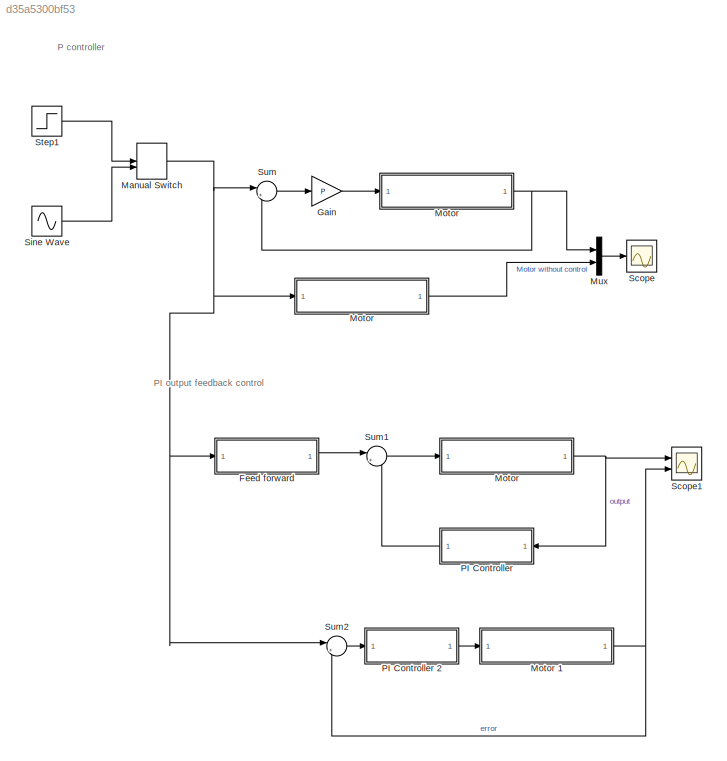
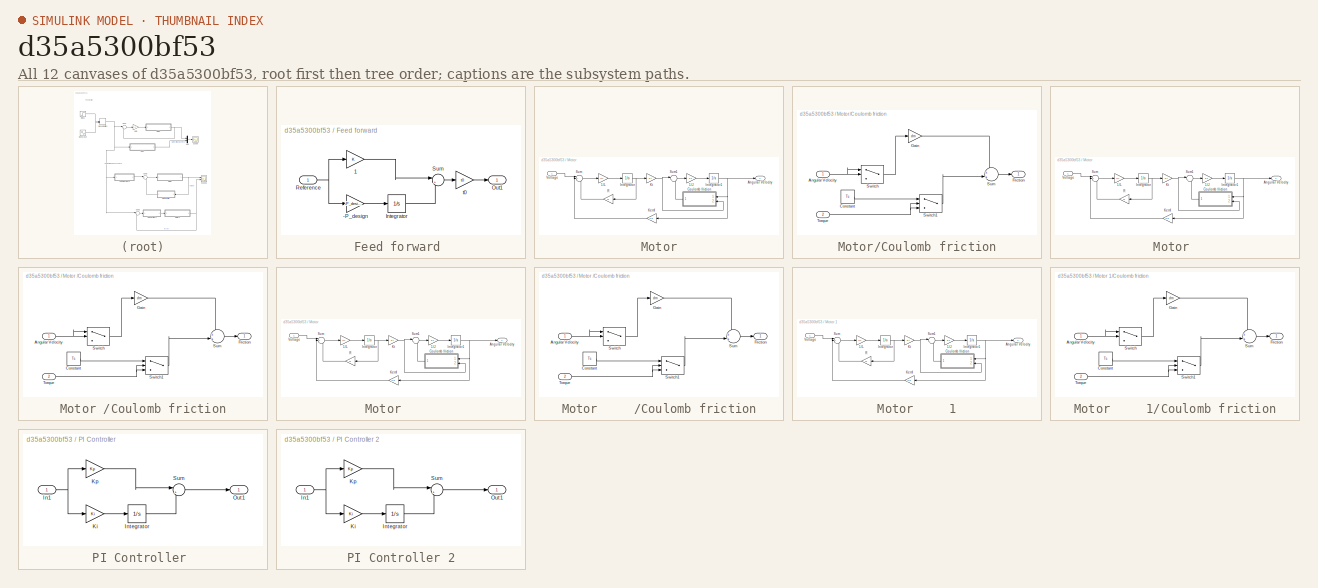
[diagram: thumbnail index - all 12 canvases of the model, root first then tree order]
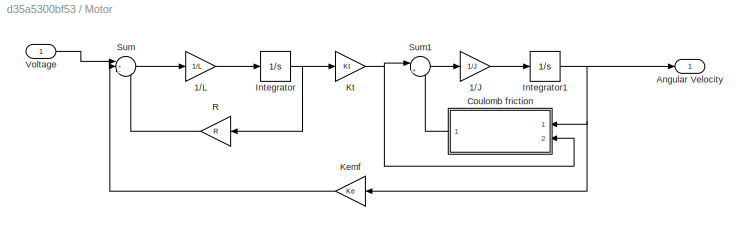
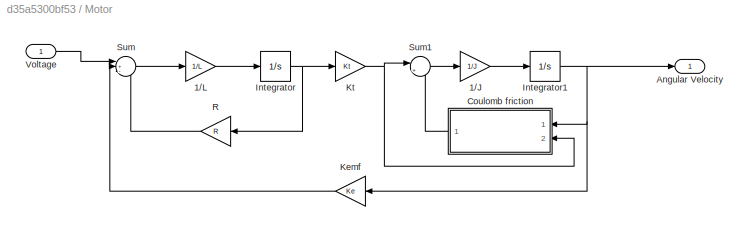
MODEL slx_d35a5300bf53
KIND model
CONFIG AbsTol = auto
CONFIG EnableMultiTasking = off
CONFIG FixedStep = auto
CONFIG MaxStep = auto
CONFIG MinStep = auto
CONFIG RelTol = 1e-3
CONFIG SampleTimeConstraint = Unconstrained
CONFIG Solver = VariableStepAuto
CONFIG SolverName = VariableStepAuto
CONFIG StartTime = 0.0
CONFIG StopTime = 10.0
BLOCK [SubSystem] Feed forward 
  Ports = [1, 1]
  RequestExecContextInheritance = off
  Variant = off
BLOCK [Gain] Feed forward /-P_design 
  Gain = -P_design
  OutDataTypeStr = Inherit: Inherit via internal rule
  ParamDataTypeStr = Inherit: Inherit via internal rule
  SaturateOnIntegerOverflow = off
BLOCK [Gain] Feed forward /1 
  OutDataTypeStr = Inherit: Inherit via internal rule
  ParamDataTypeStr = Inherit: Inherit via internal rule
  SaturateOnIntegerOverflow = off
BLOCK [Integrator] Feed forward /Integrator
  Ports = [1, 1]
BLOCK [Outport] Feed forward /Out1
  IconDisplay = Port number
BLOCK [Inport] Feed forward /Reference
  IconDisplay = Port number
BLOCK [Sum] Feed forward /Sum
  IconShape = round
  InputSameDT = off
  Inputs = |++
  OutDataTypeStr = Inherit: Inherit via internal rule
  Ports = [2, 1]
  SaturateOnIntegerOverflow = off
BLOCK [Gain] Feed forward /t0
  Gain = t0
  OutDataTypeStr = Inherit: Inherit via internal rule
  ParamDataTypeStr = Inherit: Inherit via internal rule
  SaturateOnIntegerOverflow = off
BLOCK [Gain] Gain
  Gain = P
  OutDataTypeStr = Inherit: Inherit via internal rule
  ParamDataTypeStr = Inherit: Inherit via internal rule
  SaturateOnIntegerOverflow = off
BLOCK [ManualSwitch] Manual Switch
BLOCK [SubSystem] Motor
  Ports = [1, 1]
  RequestExecContextInheritance = off
  Variant = off
BLOCK [SubSystem] Motor 
  Ports = [1, 1]
  RequestExecContextInheritance = off
  Variant = off
BLOCK [SubSystem] Motor     
  Ports = [1, 1]
  RequestExecContextInheritance = off
  Variant = off
BLOCK [Gain] Motor     /1//J
  Gain = 1/J
  OutDataTypeStr = Inherit: Inherit via internal rule
  ParamDataTypeStr = Inherit: Inherit via internal rule
  SaturateOnIntegerOverflow = off
BLOCK [Gain] Motor     /1//L
  Gain = 1/L
  OutDataTypeStr = Inherit: Inherit via internal rule
  ParamDataTypeStr = Inherit: Inherit via internal rule
  SaturateOnIntegerOverflow = off
BLOCK [Outport] Motor     /Angular Velocity
  IconDisplay = Port number
BLOCK [SubSystem] Motor     /Coulomb friction
  Ports = [2, 1]
  RequestExecContextInheritance = off
  Variant = off
BLOCK [Inport] Motor     /Coulomb friction/Angular Velocity
  IconDisplay = Port number
BLOCK [Constant] Motor     /Coulomb friction/Constant
  Value = Tc
BLOCK [Outport] Motor     /Coulomb friction/Friction 
  IconDisplay = Port number
BLOCK [Gain] Motor     /Coulomb friction/Gain
  Gain = dm
  OutDataTypeStr = Inherit: Inherit via internal rule
  ParamDataTypeStr = Inherit: Inherit via internal rule
  SaturateOnIntegerOverflow = off
BLOCK [Sum] Motor     /Coulomb friction/Sum
  IconShape = round
  InputSameDT = off
  Inputs = ++|
  OutDataTypeStr = Inherit: Inherit via internal rule
  Ports = [2, 1]
  SaturateOnIntegerOverflow = off
BLOCK [Switch] Motor     /Coulomb friction/Switch
  Criteria = u2 > Threshold
  InputSameDT = off
  SaturateOnIntegerOverflow = off
  Threshold = 1e-3
BLOCK [Switch] Motor     /Coulomb friction/Switch1
  Criteria = u2 > Threshold
  InputSameDT = off
  SaturateOnIntegerOverflow = off
  Threshold = 1e-3
BLOCK [Inport] Motor     /Coulomb friction/Torque 
  IconDisplay = Port number
  Port = 2
BLOCK [Integrator] Motor     /Integrator
  Ports = [1, 1]
BLOCK [Integrator] Motor     /Integrator1
  Ports = [1, 1]
BLOCK [Gain] Motor     /Kemf
  Gain = Ke
  OutDataTypeStr = Inherit: Inherit via internal rule
  ParamDataTypeStr = Inherit: Inherit via internal rule
  SaturateOnIntegerOverflow = off
BLOCK [Gain] Motor     /Kt 
  Gain = Kt
  OutDataTypeStr = Inherit: Inherit via internal rule
  ParamDataTypeStr = Inherit: Inherit via internal rule
  SaturateOnIntegerOverflow = off
BLOCK [Gain] Motor     /R
  Gain = R
  OutDataTypeStr = Inherit: Inherit via internal rule
  ParamDataTypeStr = Inherit: Inherit via internal rule
  SaturateOnIntegerOverflow = off
BLOCK [Sum] Motor     /Sum
  IconShape = round
  InputSameDT = off
  Inputs = |+--
  OutDataTypeStr = Inherit: Inherit via internal rule
  Ports = [3, 1]
  SaturateOnIntegerOverflow = off
BLOCK [Sum] Motor     /Sum1
  IconShape = round
  InputSameDT = off
  Inputs = |+-
  OutDataTypeStr = Inherit: Inherit via internal rule
  Ports = [2, 1]
  SaturateOnIntegerOverflow = off
BLOCK [Inport] Motor     /Voltage
  IconDisplay = Port number
BLOCK [SubSystem] Motor     1
  Ports = [1, 1]
  RequestExecContextInheritance = off
  Variant = off
BLOCK [Gain] Motor     1/1//J
  Gain = 1/J
  OutDataTypeStr = Inherit: Inherit via internal rule
  ParamDataTypeStr = Inherit: Inherit via internal rule
  SaturateOnIntegerOverflow = off
BLOCK [Gain] Motor     1/1//L
  Gain = 1/L
  OutDataTypeStr = Inherit: Inherit via internal rule
  ParamDataTypeStr = Inherit: Inherit via internal rule
  SaturateOnIntegerOverflow = off
BLOCK [Outport] Motor     1/Angular Velocity
  IconDisplay = Port number
BLOCK [SubSystem] Motor     1/Coulomb friction
  Ports = [2, 1]
  RequestExecContextInheritance = off
  Variant = off
BLOCK [Inport] Motor     1/Coulomb friction/Angular Velocity
  IconDisplay = Port number
BLOCK [Constant] Motor     1/Coulomb friction/Constant
  Value = Tc
BLOCK [Outport] Motor     1/Coulomb friction/Friction 
  IconDisplay = Port number
BLOCK [Gain] Motor     1/Coulomb friction/Gain
  Gain = dm
  OutDataTypeStr = Inherit: Inherit via internal rule
  ParamDataTypeStr = Inherit: Inherit via internal rule
  SaturateOnIntegerOverflow = off
BLOCK [Sum] Motor     1/Coulomb friction/Sum
  IconShape = round
  InputSameDT = off
  Inputs = ++|
  OutDataTypeStr = Inherit: Inherit via internal rule
  Ports = [2, 1]
  SaturateOnIntegerOverflow = off
BLOCK [Switch] Motor     1/Coulomb friction/Switch
  Criteria = u2 > Threshold
  InputSameDT = off
  SaturateOnIntegerOverflow = off
  Threshold = 1e-3
BLOCK [Switch] Motor     1/Coulomb friction/Switch1
  Criteria = u2 > Threshold
  InputSameDT = off
  SaturateOnIntegerOverflow = off
  Threshold = 1e-3
BLOCK [Inport] Motor     1/Coulomb friction/Torque 
  IconDisplay = Port number
  Port = 2
BLOCK [Integrator] Motor     1/Integrator
  Ports = [1, 1]
BLOCK [Integrator] Motor     1/Integrator1
  Ports = [1, 1]
BLOCK [Gain] Motor     1/Kemf
  Gain = Ke
  OutDataTypeStr = Inherit: Inherit via internal rule
  ParamDataTypeStr = Inherit: Inherit via internal rule
  SaturateOnIntegerOverflow = off
BLOCK [Gain] Motor     1/Kt 
  Gain = Kt
  OutDataTypeStr = Inherit: Inherit via internal rule
  ParamDataTypeStr = Inherit: Inherit via internal rule
  SaturateOnIntegerOverflow = off
BLOCK [Gain] Motor     1/R
  Gain = R
  OutDataTypeStr = Inherit: Inherit via internal rule
  ParamDataTypeStr = Inherit: Inherit via internal rule
  SaturateOnIntegerOverflow = off
BLOCK [Sum] Motor     1/Sum
  IconShape = round
  InputSameDT = off
  Inputs = |+--
  OutDataTypeStr = Inherit: Inherit via internal rule
  Ports = [3, 1]
  SaturateOnIntegerOverflow = off
BLOCK [Sum] Motor     1/Sum1
  IconShape = round
  InputSameDT = off
  Inputs = |+-
  OutDataTypeStr = Inherit: Inherit via internal rule
  Ports = [2, 1]
  SaturateOnIntegerOverflow = off
BLOCK [Inport] Motor     1/Voltage
  IconDisplay = Port number
BLOCK [Gain] Motor /1//J
  Gain = 1/J
  OutDataTypeStr = Inherit: Inherit via internal rule
  ParamDataTypeStr = Inherit: Inherit via internal rule
  SaturateOnIntegerOverflow = off
BLOCK [Gain] Motor /1//L
  Gain = 1/L
  OutDataTypeStr = Inherit: Inherit via internal rule
  ParamDataTypeStr = Inherit: Inherit via internal rule
  SaturateOnIntegerOverflow = off
BLOCK [Outport] Motor /Angular Velocity
  IconDisplay = Port number
BLOCK [SubSystem] Motor /Coulomb friction
  Ports = [2, 1]
  RequestExecContextInheritance = off
  Variant = off
BLOCK [Inport] Motor /Coulomb friction/Angular Velocity
  IconDisplay = Port number
BLOCK [Constant] Motor /Coulomb friction/Constant
  Value = Tc
BLOCK [Outport] Motor /Coulomb friction/Friction 
  IconDisplay = Port number
BLOCK [Gain] Motor /Coulomb friction/Gain
  Gain = dm
  OutDataTypeStr = Inherit: Inherit via internal rule
  ParamDataTypeStr = Inherit: Inherit via internal rule
  SaturateOnIntegerOverflow = off
BLOCK [Sum] Motor /Coulomb friction/Sum
  IconShape = round
  InputSameDT = off
  Inputs = ++|
  OutDataTypeStr = Inherit: Inherit via internal rule
  Ports = [2, 1]
  SaturateOnIntegerOverflow = off
BLOCK [Switch] Motor /Coulomb friction/Switch
  Criteria = u2 > Threshold
  InputSameDT = off
  SaturateOnIntegerOverflow = off
  Threshold = 1e-3
BLOCK [Switch] Motor /Coulomb friction/Switch1
  Criteria = u2 > Threshold
  InputSameDT = off
  SaturateOnIntegerOverflow = off
  Threshold = 1e-3
BLOCK [Inport] Motor /Coulomb friction/Torque 
  IconDisplay = Port number
  Port = 2
BLOCK [Integrator] Motor /Integrator
  Ports = [1, 1]
BLOCK [Integrator] Motor /Integrator1
  Ports = [1, 1]
BLOCK [Gain] Motor /Kemf
  Gain = Ke
  OutDataTypeStr = Inherit: Inherit via internal rule
  ParamDataTypeStr = Inherit: Inherit via internal rule
  SaturateOnIntegerOverflow = off
BLOCK [Gain] Motor /Kt 
  Gain = Kt
  OutDataTypeStr = Inherit: Inherit via internal rule
  ParamDataTypeStr = Inherit: Inherit via internal rule
  SaturateOnIntegerOverflow = off
BLOCK [Gain] Motor /R
  Gain = R
  OutDataTypeStr = Inherit: Inherit via internal rule
  ParamDataTypeStr = Inherit: Inherit via internal rule
  SaturateOnIntegerOverflow = off
BLOCK [Sum] Motor /Sum
  IconShape = round
  InputSameDT = off
  Inputs = |+--
  OutDataTypeStr = Inherit: Inherit via internal rule
  Ports = [3, 1]
  SaturateOnIntegerOverflow = off
BLOCK [Sum] Motor /Sum1
  IconShape = round
  InputSameDT = off
  Inputs = |+-
  OutDataTypeStr = Inherit: Inherit via internal rule
  Ports = [2, 1]
  SaturateOnIntegerOverflow = off
BLOCK [Inport] Motor /Voltage
  IconDisplay = Port number
BLOCK [Gain] Motor/1//J
  Gain = 1/J
  OutDataTypeStr = Inherit: Inherit via internal rule
  ParamDataTypeStr = Inherit: Inherit via internal rule
  SaturateOnIntegerOverflow = off
BLOCK [Gain] Motor/1//L
  Gain = 1/L
  OutDataTypeStr = Inherit: Inherit via internal rule
  ParamDataTypeStr = Inherit: Inherit via internal rule
  SaturateOnIntegerOverflow = off
BLOCK [Outport] Motor/Angular Velocity
  IconDisplay = Port number
BLOCK [SubSystem] Motor/Coulomb friction
  Ports = [2, 1]
  RequestExecContextInheritance = off
  Variant = off
BLOCK [Inport] Motor/Coulomb friction/Angular Velocity
  IconDisplay = Port number
BLOCK [Constant] Motor/Coulomb friction/Constant
  Value = Tc
BLOCK [Outport] Motor/Coulomb friction/Friction 
  IconDisplay = Port number
BLOCK [Gain] Motor/Coulomb friction/Gain
  Gain = dm
  OutDataTypeStr = Inherit: Inherit via internal rule
  ParamDataTypeStr = Inherit: Inherit via internal rule
  SaturateOnIntegerOverflow = off
BLOCK [Sum] Motor/Coulomb friction/Sum
  IconShape = round
  InputSameDT = off
  Inputs = ++|
  OutDataTypeStr = Inherit: Inherit via internal rule
  Ports = [2, 1]
  SaturateOnIntegerOverflow = off
BLOCK [Switch] Motor/Coulomb friction/Switch
  Criteria = u2 > Threshold
  InputSameDT = off
  SaturateOnIntegerOverflow = off
  Threshold = 1e-3
BLOCK [Switch] Motor/Coulomb friction/Switch1
  Criteria = u2 > Threshold
  InputSameDT = off
  SaturateOnIntegerOverflow = off
  Threshold = 1e-3
BLOCK [Inport] Motor/Coulomb friction/Torque 
  IconDisplay = Port number
  Port = 2
BLOCK [Integrator] Motor/Integrator
  Ports = [1, 1]
BLOCK [Integrator] Motor/Integrator1
  Ports = [1, 1]
BLOCK [Gain] Motor/Kemf
  Gain = Ke
  OutDataTypeStr = Inherit: Inherit via internal rule
  ParamDataTypeStr = Inherit: Inherit via internal rule
  SaturateOnIntegerOverflow = off
BLOCK [Gain] Motor/Kt 
  Gain = Kt
  OutDataTypeStr = Inherit: Inherit via internal rule
  ParamDataTypeStr = Inherit: Inherit via internal rule
  SaturateOnIntegerOverflow = off
BLOCK [Gain] Motor/R
  Gain = R
  OutDataTypeStr = Inherit: Inherit via internal rule
  ParamDataTypeStr = Inherit: Inherit via internal rule
  SaturateOnIntegerOverflow = off
BLOCK [Sum] Motor/Sum
  IconShape = round
  InputSameDT = off
  Inputs = |+--
  OutDataTypeStr = Inherit: Inherit via internal rule
  Ports = [3, 1]
  SaturateOnIntegerOverflow = off
BLOCK [Sum] Motor/Sum1
  IconShape = round
  InputSameDT = off
  Inputs = |+-
  OutDataTypeStr = Inherit: Inherit via internal rule
  Ports = [2, 1]
  SaturateOnIntegerOverflow = off
BLOCK [Inport] Motor/Voltage
  IconDisplay = Port number
BLOCK [Mux] Mux
  DisplayOption = bar
  Inputs = 2
  Ports = [2, 1]
BLOCK [SubSystem] PI Controller 
  Ports = [1, 1]
  RequestExecContextInheritance = off
  Variant = off
BLOCK [Inport] PI Controller /In1
  IconDisplay = Port number
BLOCK [Integrator] PI Controller /Integrator
  Ports = [1, 1]
BLOCK [Gain] PI Controller /Ki 
  Gain = Ki
  OutDataTypeStr = Inherit: Inherit via internal rule
  ParamDataTypeStr = Inherit: Inherit via internal rule
  SaturateOnIntegerOverflow = off
BLOCK [Gain] PI Controller /Kp
  Gain = Kp
  OutDataTypeStr = Inherit: Inherit via internal rule
  ParamDataTypeStr = Inherit: Inherit via internal rule
  SaturateOnIntegerOverflow = off
BLOCK [Outport] PI Controller /Out1
  IconDisplay = Port number
BLOCK [Sum] PI Controller /Sum
  IconShape = round
  InputSameDT = off
  Inputs = |++
  OutDataTypeStr = Inherit: Inherit via internal rule
  Ports = [2, 1]
  SaturateOnIntegerOverflow = off
BLOCK [SubSystem] PI Controller 2
  Ports = [1, 1]
  RequestExecContextInheritance = off
  Variant = off
BLOCK [Inport] PI Controller 2/In1
  IconDisplay = Port number
BLOCK [Integrator] PI Controller 2/Integrator
  Ports = [1, 1]
BLOCK [Gain] PI Controller 2/Ki 
  Gain = Ki
  OutDataTypeStr = Inherit: Inherit via internal rule
  ParamDataTypeStr = Inherit: Inherit via internal rule
  SaturateOnIntegerOverflow = off
BLOCK [Gain] PI Controller 2/Kp
  Gain = Kp
  OutDataTypeStr = Inherit: Inherit via internal rule
  ParamDataTypeStr = Inherit: Inherit via internal rule
  SaturateOnIntegerOverflow = off
BLOCK [Outport] PI Controller 2/Out1
  IconDisplay = Port number
BLOCK [Sum] PI Controller 2/Sum
  IconShape = round
  InputSameDT = off
  Inputs = |++
  OutDataTypeStr = Inherit: Inherit via internal rule
  Ports = [2, 1]
  SaturateOnIntegerOverflow = off
BLOCK [Scope] Scope
  NumInputPorts = 1
  Ports = [1]
  ScopeSpecificationString = Simulink.scopes.TimeScopeBlockCfg('CurrentConfiguration', extmgr.ConfigurationSet(extmgr.Configuration('Core','General UI',true),extmgr.Configuration('Core','Source UI',true),extmgr.Configuration('Sources','WiredSimulink',true),extmgr.Configuration('Visuals','Time Domain',true,'SerializedDisplays',{struct('MinYLimReal','-18.58934','MaxYLimReal','167.30405','YLabelReal','','MinYLimMag','0.00000','M...<+1963ch>
BLOCK [Scope] Scope1
  NumInputPorts = 2
  Ports = [2]
  ScopeSpecificationString = Simulink.scopes.TimeScopeBlockCfg('CurrentConfiguration', extmgr.ConfigurationSet(extmgr.Configuration('Core','General UI',true),extmgr.Configuration('Core','Source UI',true),extmgr.Configuration('Sources','WiredSimulink',true,'DataLoggingVariableName','ScopeData1'),extmgr.Configuration('Visuals','Time Domain',true,'SerializedDisplays',{struct('MinYLimReal','-2.78056','MaxYLimReal','25.02504','YLa...<+1403ch>
BLOCK [Sin] Sine Wave
  Amplitude = 20
  Ports = [0, 1]
  SampleTime = 0
BLOCK [Step] Step1
  After = 20
  SampleTime = 0
BLOCK [Sum] Sum
  IconShape = round
  InputSameDT = off
  Inputs = |+-
  OutDataTypeStr = Inherit: Inherit via internal rule
  Ports = [2, 1]
  SaturateOnIntegerOverflow = off
BLOCK [Sum] Sum1
  IconShape = round
  InputSameDT = off
  Inputs = |+-
  OutDataTypeStr = Inherit: Inherit via internal rule
  Ports = [2, 1]
  SaturateOnIntegerOverflow = off
BLOCK [Sum] Sum2
  IconShape = round
  InputSameDT = off
  Inputs = |+-
  OutDataTypeStr = Inherit: Inherit via internal rule
  Ports = [2, 1]
  SaturateOnIntegerOverflow = off
ANNOTATION (root): PI output feedback control
ANNOTATION (root): P controller
LINE Feed forward /-P_design :1 -> Feed forward /Integrator:1
LINE Feed forward /1 :1 -> Feed forward /Sum:1
LINE Feed forward /Integrator:1 -> Feed forward /Sum:2
NET Feed forward /Reference:1 -> Feed forward /-P_design :1, Feed forward /1 :1
LINE Feed forward /Sum:1 -> Feed forward /t0:1
LINE Feed forward /t0:1 -> Feed forward /Out1:1
LINE Feed forward :1 -> Sum1:1
LINE Gain:1 -> Motor :1
NET Manual Switch:1 -> Feed forward :1, Motor:1, Sum2:1, Sum:1
LINE Motor     /1//J:1 -> Motor     /Integrator1:1
LINE Motor     /1//L:1 -> Motor     /Integrator:1
NET Motor     /Coulomb friction/Angular Velocity:1 -> Motor     /Coulomb friction/Switch:1, Motor     /Coulomb friction/Switch:2
LINE Motor     /Coulomb friction/Constant:1 -> Motor     /Coulomb friction/Switch1:1
LINE Motor     /Coulomb friction/Gain:1 -> Motor     /Coulomb friction/Sum:1
LINE Motor     /Coulomb friction/Sum:1 -> Motor     /Coulomb friction/Friction :1
LINE Motor     /Coulomb friction/Switch1:1 -> Motor     /Coulomb friction/Sum:2
LINE Motor     /Coulomb friction/Switch:1 -> Motor     /Coulomb friction/Gain:1
NET Motor     /Coulomb friction/Torque :1 -> Motor     /Coulomb friction/Switch1:2, Motor     /Coulomb friction/Switch1:3
LINE Motor     /Coulomb friction:1 -> Motor     /Sum1:2
NET Motor     /Integrator1:1 -> Motor     /Angular Velocity:1, Motor     /Coulomb friction:1, Motor     /Kemf:1
NET Motor     /Integrator:1 -> Motor     /Kt :1, Motor     /R:1
LINE Motor     /Kemf:1 -> Motor     /Sum:2
NET Motor     /Kt :1 -> Motor     /Coulomb friction:2, Motor     /Sum1:1
LINE Motor     /R:1 -> Motor     /Sum:3
LINE Motor     /Sum1:1 -> Motor     /1//J:1
LINE Motor     /Sum:1 -> Motor     /1//L:1
LINE Motor     /Voltage:1 -> Motor     /Sum:1
LINE Motor     1/1//J:1 -> Motor     1/Integrator1:1
LINE Motor     1/1//L:1 -> Motor     1/Integrator:1
NET Motor     1/Coulomb friction/Angular Velocity:1 -> Motor     1/Coulomb friction/Switch:1, Motor     1/Coulomb friction/Switch:2
LINE Motor     1/Coulomb friction/Constant:1 -> Motor     1/Coulomb friction/Switch1:1
LINE Motor     1/Coulomb friction/Gain:1 -> Motor     1/Coulomb friction/Sum:1
LINE Motor     1/Coulomb friction/Sum:1 -> Motor     1/Coulomb friction/Friction :1
LINE Motor     1/Coulomb friction/Switch1:1 -> Motor     1/Coulomb friction/Sum:2
LINE Motor     1/Coulomb friction/Switch:1 -> Motor     1/Coulomb friction/Gain:1
NET Motor     1/Coulomb friction/Torque :1 -> Motor     1/Coulomb friction/Switch1:2, Motor     1/Coulomb friction/Switch1:3
LINE Motor     1/Coulomb friction:1 -> Motor     1/Sum1:2
NET Motor     1/Integrator1:1 -> Motor     1/Angular Velocity:1, Motor     1/Coulomb friction:1, Motor     1/Kemf:1
NET Motor     1/Integrator:1 -> Motor     1/Kt :1, Motor     1/R:1
LINE Motor     1/Kemf:1 -> Motor     1/Sum:2
NET Motor     1/Kt :1 -> Motor     1/Coulomb friction:2, Motor     1/Sum1:1
LINE Motor     1/R:1 -> Motor     1/Sum:3
LINE Motor     1/Sum1:1 -> Motor     1/1//J:1
LINE Motor     1/Sum:1 -> Motor     1/1//L:1
LINE Motor     1/Voltage:1 -> Motor     1/Sum:1
NET Motor     1:1 -> Scope1:2, Sum2:2
NET Motor     :1 -> PI Controller :1, Scope1:1
LINE Motor /1//J:1 -> Motor /Integrator1:1
LINE Motor /1//L:1 -> Motor /Integrator:1
NET Motor /Coulomb friction/Angular Velocity:1 -> Motor /Coulomb friction/Switch:1, Motor /Coulomb friction/Switch:2
LINE Motor /Coulomb friction/Constant:1 -> Motor /Coulomb friction/Switch1:1
LINE Motor /Coulomb friction/Gain:1 -> Motor /Coulomb friction/Sum:1
LINE Motor /Coulomb friction/Sum:1 -> Motor /Coulomb friction/Friction :1
LINE Motor /Coulomb friction/Switch1:1 -> Motor /Coulomb friction/Sum:2
LINE Motor /Coulomb friction/Switch:1 -> Motor /Coulomb friction/Gain:1
NET Motor /Coulomb friction/Torque :1 -> Motor /Coulomb friction/Switch1:2, Motor /Coulomb friction/Switch1:3
LINE Motor /Coulomb friction:1 -> Motor /Sum1:2
NET Motor /Integrator1:1 -> Motor /Angular Velocity:1, Motor /Coulomb friction:1, Motor /Kemf:1
NET Motor /Integrator:1 -> Motor /Kt :1, Motor /R:1
LINE Motor /Kemf:1 -> Motor /Sum:2
NET Motor /Kt :1 -> Motor /Coulomb friction:2, Motor /Sum1:1
LINE Motor /R:1 -> Motor /Sum:3
LINE Motor /Sum1:1 -> Motor /1//J:1
LINE Motor /Sum:1 -> Motor /1//L:1
LINE Motor /Voltage:1 -> Motor /Sum:1
NET Motor :1 -> Mux:1, Sum:2
LINE Motor/1//J:1 -> Motor/Integrator1:1
LINE Motor/1//L:1 -> Motor/Integrator:1
NET Motor/Coulomb friction/Angular Velocity:1 -> Motor/Coulomb friction/Switch:1, Motor/Coulomb friction/Switch:2
LINE Motor/Coulomb friction/Constant:1 -> Motor/Coulomb friction/Switch1:1
LINE Motor/Coulomb friction/Gain:1 -> Motor/Coulomb friction/Sum:1
LINE Motor/Coulomb friction/Sum:1 -> Motor/Coulomb friction/Friction :1
LINE Motor/Coulomb friction/Switch1:1 -> Motor/Coulomb friction/Sum:2
LINE Motor/Coulomb friction/Switch:1 -> Motor/Coulomb friction/Gain:1
NET Motor/Coulomb friction/Torque :1 -> Motor/Coulomb friction/Switch1:2, Motor/Coulomb friction/Switch1:3
LINE Motor/Coulomb friction:1 -> Motor/Sum1:2
NET Motor/Integrator1:1 -> Motor/Angular Velocity:1, Motor/Coulomb friction:1, Motor/Kemf:1
NET Motor/Integrator:1 -> Motor/Kt :1, Motor/R:1
LINE Motor/Kemf:1 -> Motor/Sum:2
NET Motor/Kt :1 -> Motor/Coulomb friction:2, Motor/Sum1:1
LINE Motor/R:1 -> Motor/Sum:3
LINE Motor/Sum1:1 -> Motor/1//J:1
LINE Motor/Sum:1 -> Motor/1//L:1
LINE Motor/Voltage:1 -> Motor/Sum:1
LINE Motor:1 -> Mux:2
LINE Mux:1 -> Scope:1
NET PI Controller /In1:1 -> PI Controller /Ki :1, PI Controller /Kp:1
LINE PI Controller /Integrator:1 -> PI Controller /Sum:2
LINE PI Controller /Ki :1 -> PI Controller /Integrator:1
LINE PI Controller /Kp:1 -> PI Controller /Sum:1
LINE PI Controller /Sum:1 -> PI Controller /Out1:1
NET PI Controller 2/In1:1 -> PI Controller 2/Ki :1, PI Controller 2/Kp:1
LINE PI Controller 2/Integrator:1 -> PI Controller 2/Sum:2
LINE PI Controller 2/Ki :1 -> PI Controller 2/Integrator:1
LINE PI Controller 2/Kp:1 -> PI Controller 2/Sum:1
LINE PI Controller 2/Sum:1 -> PI Controller 2/Out1:1
LINE PI Controller 2:1 -> Motor     1:1
LINE PI Controller :1 -> Sum1:2
LINE Sine Wave:1 -> Manual Switch:2
LINE Step1:1 -> Manual Switch:1
LINE Sum1:1 -> Motor     :1
LINE Sum2:1 -> PI Controller 2:1
LINE Sum:1 -> Gain:1
note: NET lines group one-source signal fan-out (src -> all destinations, sorted); 1:1 wires keep LINE
